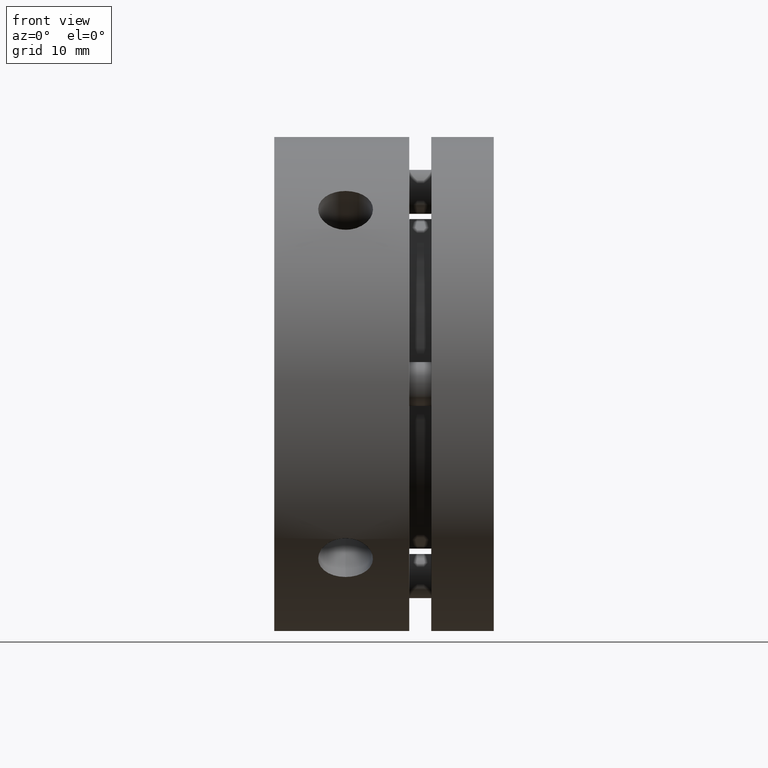
[diagram: clean part render]
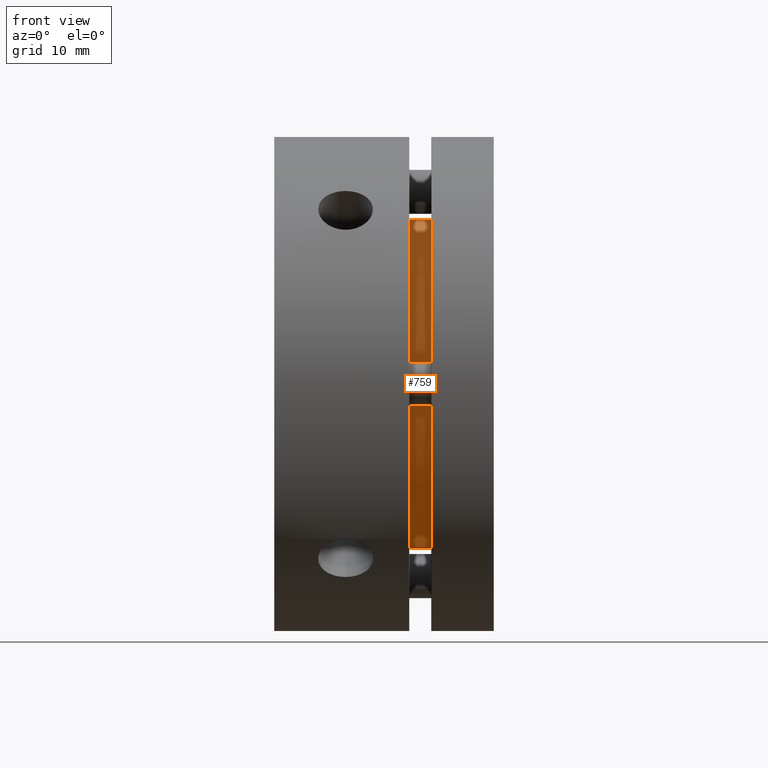
[diagram: same view with one face highlighted and labeled with its STEP entity id]
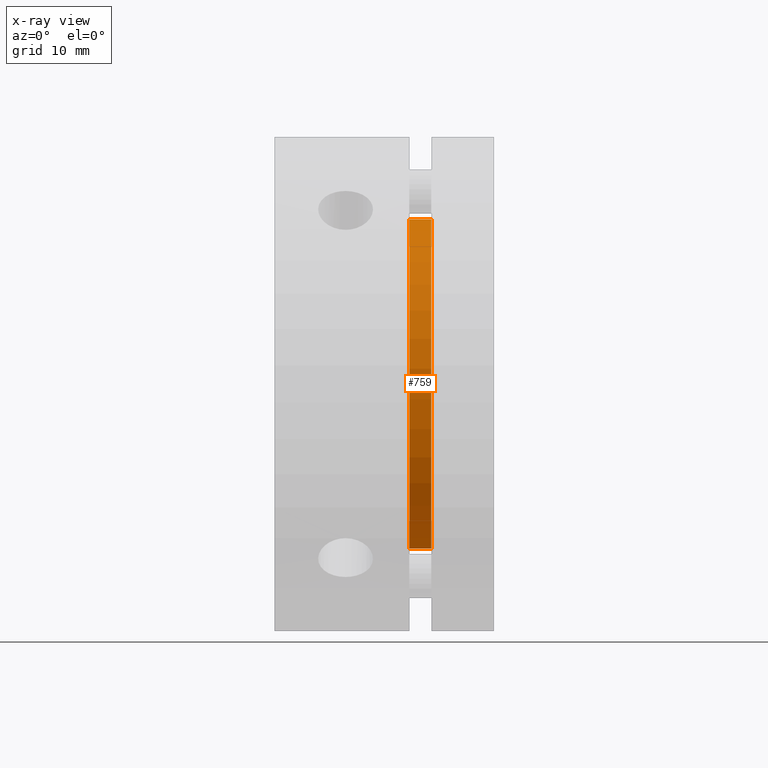
[diagram: x-ray of the same camera — body ghosted, the highlighted face saturated]
A machine part, front view. The second image highlights one B-rep face of the part: STEP entity #759.
The next image is the same camera in x-ray: the body ghosted, the highlighted face saturated — about 0% of this face is hidden behind the body in this view.
In plain terms, the highlighted cylindrical surface (partial cylindrical patch) has radius 15 mm, axis along (-1, 0, 0).
Its self-contained STEP definition (entity closure, byte-faithful):
#283 = EDGE_LOOP ( 'NONE', ( #1074, #1075, #1076, #1077 ) ) ;
#380 = EDGE_CURVE ( 'NONE', #482, #489, #1588, .T. ) ;
#382 = EDGE_CURVE ( 'NONE', #486, #490, #1595, .T. ) ;
#482 = VERTEX_POINT ( 'NONE', #2411 ) ;
#486 = VERTEX_POINT ( 'NONE', #2415 ) ;
#489 = VERTEX_POINT ( 'NONE', #2418 ) ;
#490 = VERTEX_POINT ( 'NONE', #2419 ) ;
#759 = ADVANCED_FACE ( 'NONE', ( #1735 ), #1744, .T. ) ;
#885 = EDGE_CURVE ( 'NONE', #482, #486, #3204, .T. ) ;
#895 = EDGE_CURVE ( 'NONE', #490, #489, #3167, .T. ) ;
#1074 = ORIENTED_EDGE ( 'NONE', *, *, #380, .F. ) ;
#1075 = ORIENTED_EDGE ( 'NONE', *, *, #885, .T. ) ;
#1076 = ORIENTED_EDGE ( 'NONE', *, *, #382, .T. ) ;
#1077 = ORIENTED_EDGE ( 'NONE', *, *, #895, .T. ) ;
#1338 = AXIS2_PLACEMENT_3D ( 'NONE', #2648, #2646, #2644 ) ;
#1422 = AXIS2_PLACEMENT_3D ( 'NONE', #2975, #2976, #2977 ) ;
#1432 = AXIS2_PLACEMENT_3D ( 'NONE', #3005, #3006, #3007 ) ;
#1588 = LINE ( 'NONE', #2289, #1594 ) ;
#1594 = VECTOR ( 'NONE', #2284, 1000.000000000000000 ) ;
#1595 = LINE ( 'NONE', #2288, #1597 ) ;
#1597 = VECTOR ( 'NONE', #2287, 1000.000000000000000 ) ;
#1735 = FACE_OUTER_BOUND ( 'NONE', #283, .T. ) ;
#1744 = CYLINDRICAL_SURFACE ( 'NONE', #1338, 15.00000000000000000 ) ;
#2284 = DIRECTION ( 'NONE',  ( -1.000000000000000000, 0.0000000000000000000, 0.0000000000000000000 ) ) ;
#2287 = DIRECTION ( 'NONE',  ( -1.000000000000000000, 0.0000000000000000000, 0.0000000000000000000 ) ) ;
#2288 = CARTESIAN_POINT ( 'NONE',  ( 13.30000000000000100, 0.0000000000000000000, 15.00000000000000000 ) ) ;
#2289 = CARTESIAN_POINT ( 'NONE',  ( 13.30000000000000100, 1.836970198721029600E-015, -15.00000000000000000 ) ) ;
#2411 = CARTESIAN_POINT ( 'NONE',  ( 14.29999999999999900, 1.836970198721029600E-015, -15.00000000000000000 ) ) ;
#2415 = CARTESIAN_POINT ( 'NONE',  ( 14.29999999999999900, 0.0000000000000000000, 15.00000000000000000 ) ) ;
#2418 = CARTESIAN_POINT ( 'NONE',  ( 12.30000000000000100, 1.836970198721029600E-015, -15.00000000000000000 ) ) ;
#2419 = CARTESIAN_POINT ( 'NONE',  ( 12.30000000000000100, 0.0000000000000000000, 15.00000000000000000 ) ) ;
#2644 = DIRECTION ( 'NONE',  ( 0.0000000000000000000, 0.0000000000000000000, 1.000000000000000000 ) ) ;
#2646 = DIRECTION ( 'NONE',  ( -1.000000000000000000, 0.0000000000000000000, 0.0000000000000000000 ) ) ;
#2648 = CARTESIAN_POINT ( 'NONE',  ( 13.30000000000000100, 0.0000000000000000000, 0.0000000000000000000 ) ) ;
#2975 = CARTESIAN_POINT ( 'NONE',  ( 14.29999999999999900, 0.0000000000000000000, 0.0000000000000000000 ) ) ;
#2976 = DIRECTION ( 'NONE',  ( -1.000000000000000000, 0.0000000000000000000, 0.0000000000000000000 ) ) ;
#2977 = DIRECTION ( 'NONE',  ( 0.0000000000000000000, 0.0000000000000000000, 1.000000000000000000 ) ) ;
#3005 = CARTESIAN_POINT ( 'NONE',  ( 12.30000000000000100, 0.0000000000000000000, 0.0000000000000000000 ) ) ;
#3006 = DIRECTION ( 'NONE',  ( 1.000000000000000000, -0.0000000000000000000, -0.0000000000000000000 ) ) ;
#3007 = DIRECTION ( 'NONE',  ( 0.0000000000000000000, 0.0000000000000000000, 1.000000000000000000 ) ) ;
#3167 = CIRCLE ( 'NONE', #1432, 15.00000000000000000 ) ;
#3204 = CIRCLE ( 'NONE', #1422, 15.00000000000000000 ) ;